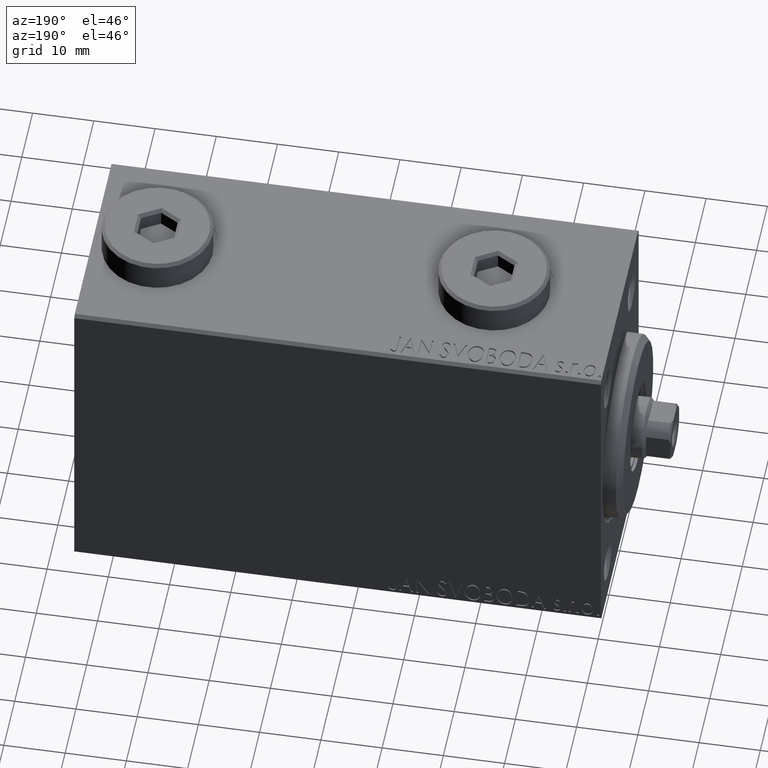
[diagram: clean part render]
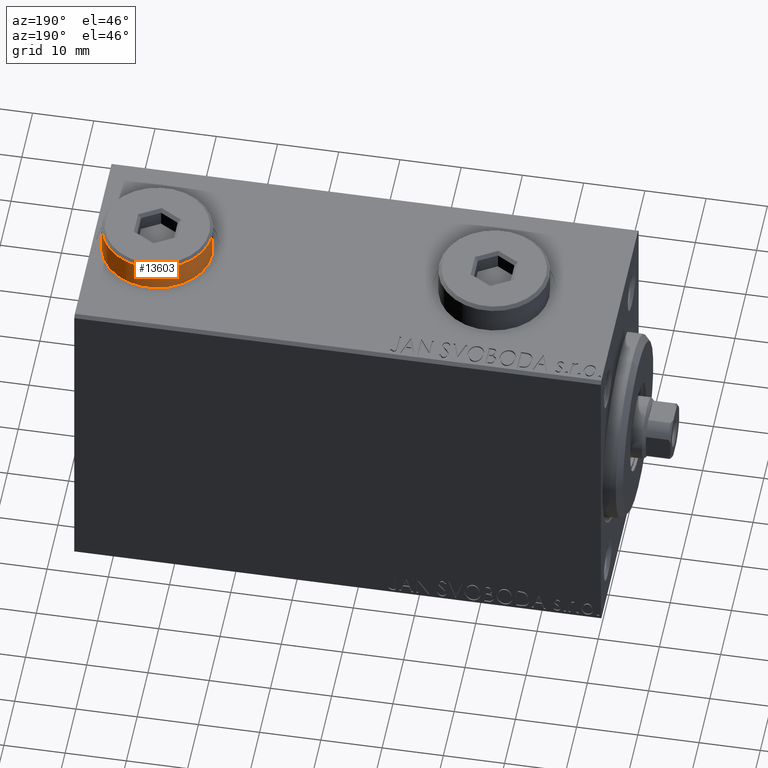
[diagram: same view with one face highlighted and labeled with its STEP entity id]
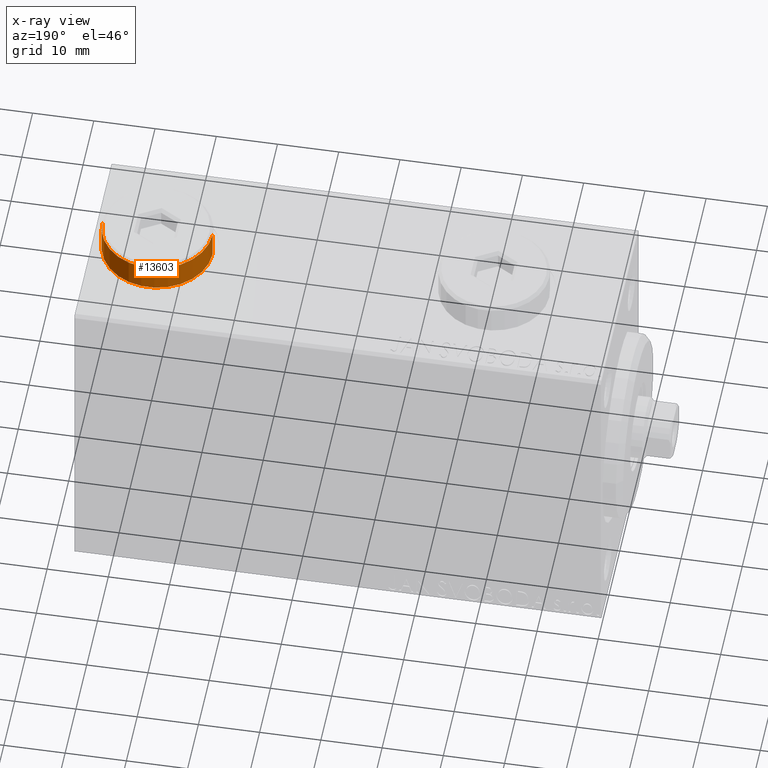
[diagram: x-ray of the same camera — body ghosted, the highlighted face saturated]
A machine part, auxiliary view. The second image highlights one B-rep face of the part: STEP entity #13603.
The next image is the same camera in x-ray: the body ghosted, the highlighted face saturated — about 0% of this face is hidden behind the body in this view.
In plain terms, the highlighted cylindrical surface (partial cylindrical patch) has radius 9 mm, axis along (-0, -0, -1).
Its self-contained STEP definition (entity closure, byte-faithful):
#103 = LINE ( 'NONE', #568, #38643 ) ;
#568 = CARTESIAN_POINT ( 'NONE',  ( -9.000000000000001776, 0.000000000000000000, 5.000000000000000000 ) ) ;
#1358 = DIRECTION ( 'NONE',  ( 0.000000000000000000, 0.000000000000000000, 1.000000000000000000 ) ) ;
#1442 = CARTESIAN_POINT ( 'NONE',  ( 9.000000000000001776, 1.102182119232617911E-15, 0.000000000000000000 ) ) ;
#2257 = CIRCLE ( 'NONE', #36063, 9.000000000000001776 ) ;
#2638 = VERTEX_POINT ( 'NONE', #35838 ) ;
#2990 = CARTESIAN_POINT ( 'NONE',  ( -9.000000000000001776, 0.000000000000000000, 0.000000000000000000 ) ) ;
#5253 = DIRECTION ( 'NONE',  ( -1.000000000000000000, 0.000000000000000000, 0.000000000000000000 ) ) ;
#6851 = AXIS2_PLACEMENT_3D ( 'NONE', #15440, #1358, #19107 ) ;
#7625 = VERTEX_POINT ( 'NONE', #44847 ) ;
#9660 = VERTEX_POINT ( 'NONE', #2990 ) ;
#9824 = CARTESIAN_POINT ( 'NONE',  ( 0.000000000000000000, 0.000000000000000000, 5.000000000000000000 ) ) ;
#10699 = DIRECTION ( 'NONE',  ( -0.000000000000000000, -0.000000000000000000, -1.000000000000000000 ) ) ;
#10728 = EDGE_LOOP ( 'NONE', ( #19203, #19380, #43652, #32598 ) ) ;
#13603 = ADVANCED_FACE ( 'NONE', ( #41352 ), #30353, .T. ) ;
#14230 = EDGE_CURVE ( 'NONE', #7625, #40448, #30410, .T. ) ;
#14489 = EDGE_CURVE ( 'NONE', #40448, #9660, #30401, .T. ) ;
#15440 = CARTESIAN_POINT ( 'NONE',  ( 0.000000000000000000, 0.000000000000000000, 0.000000000000000000 ) ) ;
#19107 = DIRECTION ( 'NONE',  ( 1.000000000000000000, 0.000000000000000000, 0.000000000000000000 ) ) ;
#19203 = ORIENTED_EDGE ( 'NONE', *, *, #42942, .T. ) ;
#19380 = ORIENTED_EDGE ( 'NONE', *, *, #14230, .T. ) ;
#20925 = EDGE_CURVE ( 'NONE', #2638, #9660, #103, .T. ) ;
#21408 = CARTESIAN_POINT ( 'NONE',  ( 0.000000000000000000, 0.000000000000000000, 4.500000000000006217 ) ) ;
#23008 = DIRECTION ( 'NONE',  ( -0.000000000000000000, -0.000000000000000000, -1.000000000000000000 ) ) ;
#25560 = DIRECTION ( 'NONE',  ( 0.000000000000000000, 0.000000000000000000, -1.000000000000000000 ) ) ;
#26970 = DIRECTION ( 'NONE',  ( -0.000000000000000000, -0.000000000000000000, -1.000000000000000000 ) ) ;
#27488 = VECTOR ( 'NONE', #26970, 1000.000000000000000 ) ;
#30353 = CYLINDRICAL_SURFACE ( 'NONE', #43626, 9.000000000000001776 ) ;
#30401 = CIRCLE ( 'NONE', #6851, 9.000000000000001776 ) ;
#30410 = LINE ( 'NONE', #41633, #27488 ) ;
#32598 = ORIENTED_EDGE ( 'NONE', *, *, #20925, .F. ) ;
#35838 = CARTESIAN_POINT ( 'NONE',  ( -9.000000000000001776, 0.000000000000000000, 4.500000000000006217 ) ) ;
#36063 = AXIS2_PLACEMENT_3D ( 'NONE', #21408, #25560, #39555 ) ;
#38643 = VECTOR ( 'NONE', #10699, 1000.000000000000000 ) ;
#39555 = DIRECTION ( 'NONE',  ( 1.000000000000000000, 0.000000000000000000, 0.000000000000000000 ) ) ;
#40448 = VERTEX_POINT ( 'NONE', #1442 ) ;
#41352 = FACE_OUTER_BOUND ( 'NONE', #10728, .T. ) ;
#41633 = CARTESIAN_POINT ( 'NONE',  ( 9.000000000000001776, 1.102182119232617911E-15, 5.000000000000000000 ) ) ;
#42942 = EDGE_CURVE ( 'NONE', #2638, #7625, #2257, .T. ) ;
#43626 = AXIS2_PLACEMENT_3D ( 'NONE', #9824, #23008, #5253 ) ;
#43652 = ORIENTED_EDGE ( 'NONE', *, *, #14489, .T. ) ;
#44847 = CARTESIAN_POINT ( 'NONE',  ( 9.000000000000001776, 1.102182119232617911E-15, 4.500000000000006217 ) ) ;